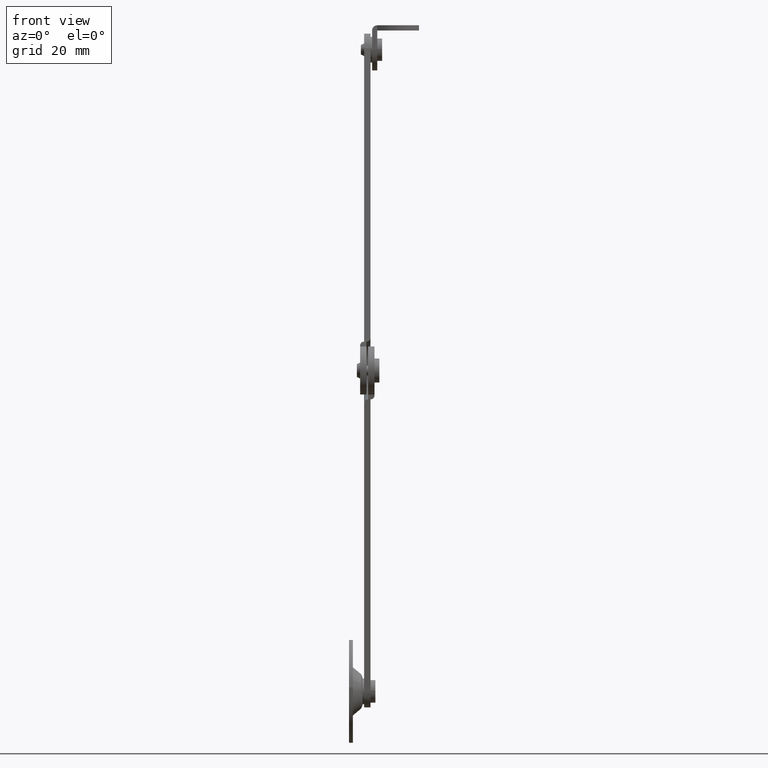
[diagram: clean part render]
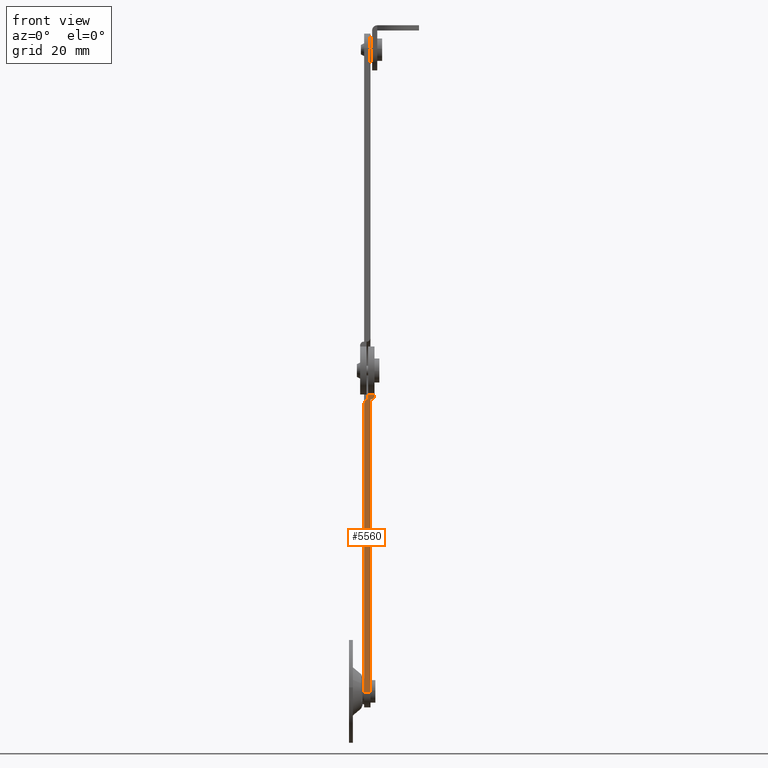
[diagram: same view with one face highlighted and labeled with its STEP entity id]
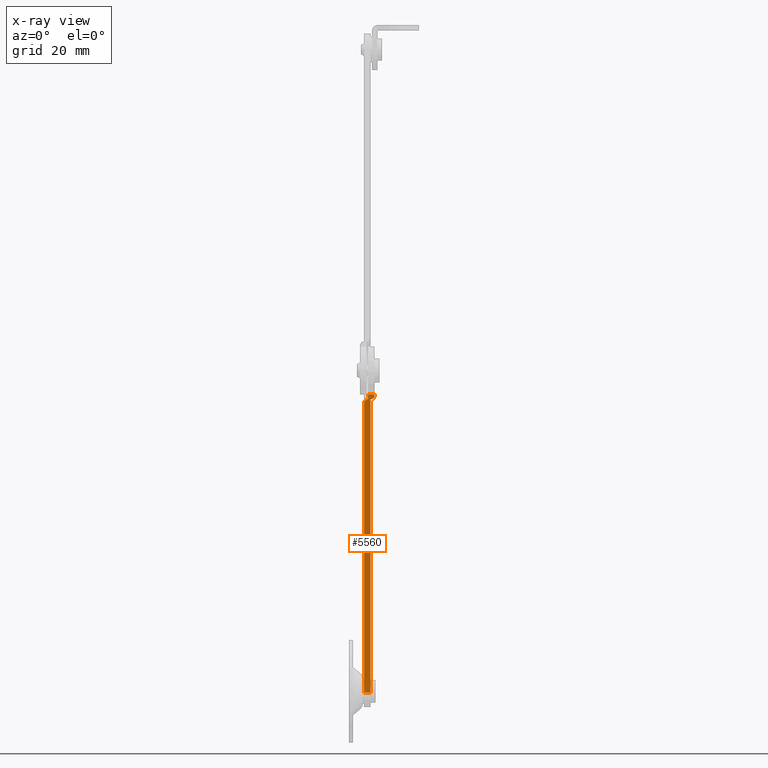
[diagram: x-ray of the same camera — body ghosted, the highlighted face saturated]
A machine part, front view. The second image highlights one B-rep face of the part: STEP entity #5560.
The next image is the same camera in x-ray: the body ghosted, the highlighted face saturated — about 0% of this face is hidden behind the body in this view.
In plain terms, the highlighted face is a freeform B-spline surface patch.
Its self-contained STEP definition (entity closure, byte-faithful):
#5014=CARTESIAN_POINT('',(6.749993133545015,0.129379741746848,-8.999092889157273));
#5015=VERTEX_POINT('',#5014);
#5016=CARTESIAN_POINT('',(7.949993133544984,0.025913508062196,-7.799979842558343));
#5017=VERTEX_POINT('',#5016);
#5018=CARTESIAN_POINT('',(6.749993133545015,0.129379741746848,-8.999092889157273));
#5019=CARTESIAN_POINT('',(6.829347086125213,0.129379741746848,-8.999092889157275));
#5020=CARTESIAN_POINT('',(6.907369692685492,0.128708017540908,-8.991307999049901));
#5021=CARTESIAN_POINT('',(7.022488728400014,0.126734290737753,-8.968433661444269));
#5022=CARTESIAN_POINT('',(7.060540214592288,0.125914157557579,-8.958928798251007));
#5023=CARTESIAN_POINT('',(7.135985477318252,0.123942046964747,-8.936073191576387));
#5024=CARTESIAN_POINT('',(7.173472772624979,0.122784743616133,-8.922660723616788));
#5025=CARTESIAN_POINT('',(7.282499004047880,0.118886313888569,-8.877480206446140));
#5026=CARTESIAN_POINT('',(7.351435140994835,0.115705938393762,-8.840621517257457));
#5027=CARTESIAN_POINT('',(7.449269527144279,0.110071340361493,-8.775319826336462));
#5028=CARTESIAN_POINT('',(7.481063177414818,0.108039688861510,-8.751774175422005));
#5029=CARTESIAN_POINT('',(7.542172216821205,0.103713241606362,-8.701633185803287));
#5030=CARTESIAN_POINT('',(7.571251514634777,0.101436980774362,-8.675252656002307));
#5031=CARTESIAN_POINT('',(7.654202277352502,0.094279701748217,-8.592303984220580));
#5032=CARTESIAN_POINT('',(7.703827070783246,0.089073287168045,-8.531964688715586));
#5033=CARTESIAN_POINT('',(7.769550526807118,0.080595985301837,-8.433717725375749));
#5034=CARTESIAN_POINT('',(7.789934842171965,0.077661890551262,-8.399713285762189));
#5035=CARTESIAN_POINT('',(7.826889354803329,0.071697834762104,-8.330593372407455));
#5036=CARTESIAN_POINT('',(7.860279020654485,0.065607245052323,-8.260007005025633));
#5037=CARTESIAN_POINT('',(7.886646508246428,0.059267403747390,-8.186531957646578));
#5038=CARTESIAN_POINT('',(7.909455457086151,0.052801252424730,-8.111593051143842));
#5039=CARTESIAN_POINT('',(7.919112008678199,0.049489847158716,-8.073215803653071));
#5040=CARTESIAN_POINT('',(7.942252349818535,0.039481225130280,-7.957221736551389));
#5041=CARTESIAN_POINT('',(7.949993133545017,0.032734690291205,-7.879033349318455));
#5042=CARTESIAN_POINT('',(7.949993133545016,0.025913508062197,-7.799979842558353));
#5043=B_SPLINE_CURVE_WITH_KNOTS('',3,(#5018,#5019,#5020,#5021,#5022,#5023,#5024,#5025,#5026,#5027,#5028,#5029,#5030,#5031,#5032,#5033,#5034,#5035,#5036,#5037,#5038,#5039,#5040,#5041,#5042),.UNSPECIFIED.,.F.,.U.,(4,2,2,2,2,2,2,2,2,1,2,2,4),(0.0,0.125000000000000,0.187500000000000,0.250000000000000,0.375000000000000,0.437500000000001,0.500000000000001,0.625000000000000,0.687500000000001,0.750000000000001,0.812500000000001,0.875000000000000,1.0),.UNSPECIFIED.);
#5044=EDGE_CURVE('',#5015,#5017,#5043,.T.);
#5109=CARTESIAN_POINT('',(5.899993133545006,0.129379741746848,-8.999092889157273));
#5110=VERTEX_POINT('',#5109);
#5111=CARTESIAN_POINT('',(4.699993133545026,0.232773543082902,-10.197366487260730));
#5112=VERTEX_POINT('',#5111);
#5113=CARTESIAN_POINT('',(5.899993133545006,0.129379741746848,-8.999092889157273));
#5114=CARTESIAN_POINT('',(5.820671099637337,0.129379741746848,-8.999092889157273));
#5115=CARTESIAN_POINT('',(5.742679510080865,0.130050938715305,-9.006871668891035));
#5116=CARTESIAN_POINT('',(5.627605525073690,0.132023026573438,-9.029727012083800));
#5117=CARTESIAN_POINT('',(5.589568803768894,0.132842468825592,-9.039223867826001));
#5118=CARTESIAN_POINT('',(5.514152469635919,0.134812858527429,-9.062059530381951));
#5119=CARTESIAN_POINT('',(5.476677727906926,0.135969170823405,-9.075460512621948));
#5120=CARTESIAN_POINT('',(5.367683852180083,0.139864296211568,-9.120602734434339));
#5121=CARTESIAN_POINT('',(5.298765624127092,0.143041902690182,-9.157429332347210));
#5122=CARTESIAN_POINT('',(5.200951118531904,0.148671266778556,-9.222670364924065));
#5123=CARTESIAN_POINT('',(5.169165152214697,0.150700819198252,-9.246191688727443));
#5124=CARTESIAN_POINT('',(5.108056483063597,0.155023583285053,-9.296289992582320));
#5125=CARTESIAN_POINT('',(5.078975857938901,0.157297893037324,-9.322647910512016));
#5126=CARTESIAN_POINT('',(4.996016603695913,0.164448991861081,-9.405524957367904));
#5127=CARTESIAN_POINT('',(4.946380090283451,0.169650846641511,-9.465811407464633));
#5128=CARTESIAN_POINT('',(4.880630580928290,0.178120697312372,-9.563972015814692));
#5129=CARTESIAN_POINT('',(4.860231283490410,0.181052896955786,-9.597954492246245));
#5130=CARTESIAN_POINT('',(4.823248307253190,0.187012964183959,-9.667028180515329));
#5131=CARTESIAN_POINT('',(4.789829820845988,0.193099496164835,-9.737567521195819));
#5132=CARTESIAN_POINT('',(4.763434090926811,0.199435188952697,-9.810994489691877));
#5133=CARTESIAN_POINT('',(4.740598200497794,0.205897181503568,-9.885885198465447));
#5134=CARTESIAN_POINT('',(4.730928808829220,0.209206368998720,-9.924236743290901));
#5135=CARTESIAN_POINT('',(4.707749888443273,0.219211065047359,-10.040185310586240));
#5136=CARTESIAN_POINT('',(4.699993133545005,0.225954961402965,-10.118343119341169));
#5137=CARTESIAN_POINT('',(4.699993133545005,0.232773543082903,-10.197366487260730));
#5138=B_SPLINE_CURVE_WITH_KNOTS('',3,(#5113,#5114,#5115,#5116,#5117,#5118,#5119,#5120,#5121,#5122,#5123,#5124,#5125,#5126,#5127,#5128,#5129,#5130,#5131,#5132,#5133,#5134,#5135,#5136,#5137),.UNSPECIFIED.,.F.,.U.,(4,2,2,2,2,2,2,2,2,1,2,2,4),(0.0,0.125000000000002,0.187500000000002,0.250000000000003,0.375000000000003,0.437500000000003,0.500000000000003,0.625000000000002,0.687500000000001,0.750000000000001,0.812500000000001,0.875000000000000,1.0),.UNSPECIFIED.);
#5139=EDGE_CURVE('',#5110,#5112,#5138,.T.);
#5192=CARTESIAN_POINT('',(7.949993133544995,0.000031531019608,-7.500022888117252));
#5193=VERTEX_POINT('',#5192);
#5194=CARTESIAN_POINT('',(7.949993133544995,0.000031531019608,-7.500022888117252));
#5195=CARTESIAN_POINT('',(7.949993133544984,0.025913508062196,-7.799979842558343));
#5196=QUASI_UNIFORM_CURVE('',1,(#5194,#5195),.UNSPECIFIED.,.F.,.U.);
#5197=EDGE_CURVE('',#5193,#5017,#5196,.T.);
#5248=CARTESIAN_POINT('',(5.949993133544996,0.129379741746848,-8.999092889157273));
#5249=VERTEX_POINT('',#5248);
#5265=CARTESIAN_POINT('',(5.949993133544996,0.000031531019608,-7.500022888117252));
#5266=VERTEX_POINT('',#5265);
#5267=CARTESIAN_POINT('',(5.949993133544996,0.000031531019608,-7.500022888117252));
#5268=CARTESIAN_POINT('',(5.949993133544996,0.129379741746848,-8.999092889157273));
#5269=QUASI_UNIFORM_CURVE('',1,(#5267,#5268),.UNSPECIFIED.,.F.,.U.);
#5270=EDGE_CURVE('',#5266,#5249,#5269,.T.);
#5344=CARTESIAN_POINT('',(5.949993133544996,0.000031531019608,-7.500022888117252));
#5345=CARTESIAN_POINT('',(7.949993133544995,0.000031531019608,-7.500022888117252));
#5346=QUASI_UNIFORM_CURVE('',1,(#5344,#5345),.UNSPECIFIED.,.F.,.U.);
#5347=EDGE_CURVE('',#5266,#5193,#5346,.T.);
#5374=CARTESIAN_POINT('',(6.699993133545026,0.129379741746848,-8.999092889157273));
#5375=VERTEX_POINT('',#5374);
#5376=CARTESIAN_POINT('',(6.699993133545026,0.129379741746848,-8.999092889157273));
#5377=CARTESIAN_POINT('',(6.749993133545015,0.129379741746848,-8.999092889157273));
#5378=QUASI_UNIFORM_CURVE('',1,(#5376,#5377),.UNSPECIFIED.,.F.,.U.);
#5379=EDGE_CURVE('',#5375,#5015,#5378,.T.);
#5402=CARTESIAN_POINT('',(4.699993133545038,8.020030799330039,-100.447116967676000));
#5403=VERTEX_POINT('',#5402);
#5404=CARTESIAN_POINT('',(4.699993133545026,0.232773543082902,-10.197366487260730));
#5405=CARTESIAN_POINT('',(4.699993133545038,8.020030799330039,-100.447116967676000));
#5406=QUASI_UNIFORM_CURVE('',1,(#5404,#5405),.UNSPECIFIED.,.F.,.U.);
#5407=EDGE_CURVE('',#5112,#5403,#5406,.T.);
#5472=CARTESIAN_POINT('',(6.699993133545038,8.020030799330039,-100.447116967676000));
#5473=VERTEX_POINT('',#5472);
#5474=CARTESIAN_POINT('',(6.699993133545026,0.129379741746848,-8.999092889157273));
#5475=CARTESIAN_POINT('',(6.699993133545038,8.020030799330039,-100.447116967676000));
#5476=QUASI_UNIFORM_CURVE('',1,(#5474,#5475),.UNSPECIFIED.,.F.,.U.);
#5477=EDGE_CURVE('',#5375,#5473,#5476,.T.);
#5535=CARTESIAN_POINT('',(4.537655639844171,8.420629747237824,-105.089824136800500));
#5536=CARTESIAN_POINT('',(4.537655639844157,-0.400567632001323,-2.857313225957463));
#5537=CARTESIAN_POINT('',(8.112330714417668,8.420629747237822,-105.089824136800500));
#5538=CARTESIAN_POINT('',(8.112330714417654,-0.400567632001324,-2.857313225957463));
#5539=B_SPLINE_SURFACE_WITH_KNOTS('',1,1,((#5535,#5537),(#5536,#5538)),.UNSPECIFIED.,.F.,.F.,.U.,(2,2),(2,2),(0.0,102.612376496888200),(0.0,3.574675074573497),.UNSPECIFIED.);
#5540=CARTESIAN_POINT('',(5.949993133544996,0.129379741746848,-8.999092889157273));
#5541=CARTESIAN_POINT('',(5.899993133545006,0.129379741746848,-8.999092889157273));
#5542=QUASI_UNIFORM_CURVE('',1,(#5540,#5541),.UNSPECIFIED.,.F.,.U.);
#5543=EDGE_CURVE('',#5249,#5110,#5542,.T.);
#5544=ORIENTED_EDGE('',*,*,#5543,.T.);
#5545=ORIENTED_EDGE('',*,*,#5139,.T.);
#5546=ORIENTED_EDGE('',*,*,#5407,.T.);
#5547=CARTESIAN_POINT('',(6.699993133545038,8.020030799330039,-100.447116967676000));
#5548=CARTESIAN_POINT('',(4.699993133545038,8.020030799330039,-100.447116967676000));
#5549=QUASI_UNIFORM_CURVE('',1,(#5547,#5548),.UNSPECIFIED.,.F.,.U.);
#5550=EDGE_CURVE('',#5473,#5403,#5549,.T.);
#5551=ORIENTED_EDGE('',*,*,#5550,.F.);
#5552=ORIENTED_EDGE('',*,*,#5477,.F.);
#5553=ORIENTED_EDGE('',*,*,#5379,.T.);
#5554=ORIENTED_EDGE('',*,*,#5044,.T.);
#5555=ORIENTED_EDGE('',*,*,#5197,.F.);
#5556=ORIENTED_EDGE('',*,*,#5347,.F.);
#5557=ORIENTED_EDGE('',*,*,#5270,.T.);
#5558=EDGE_LOOP('',(#5544,#5545,#5546,#5551,#5552,#5553,#5554,#5555,#5556,#5557));
#5559=FACE_OUTER_BOUND('',#5558,.T.);
#5560=ADVANCED_FACE('',(#5559),#5539,.F.);